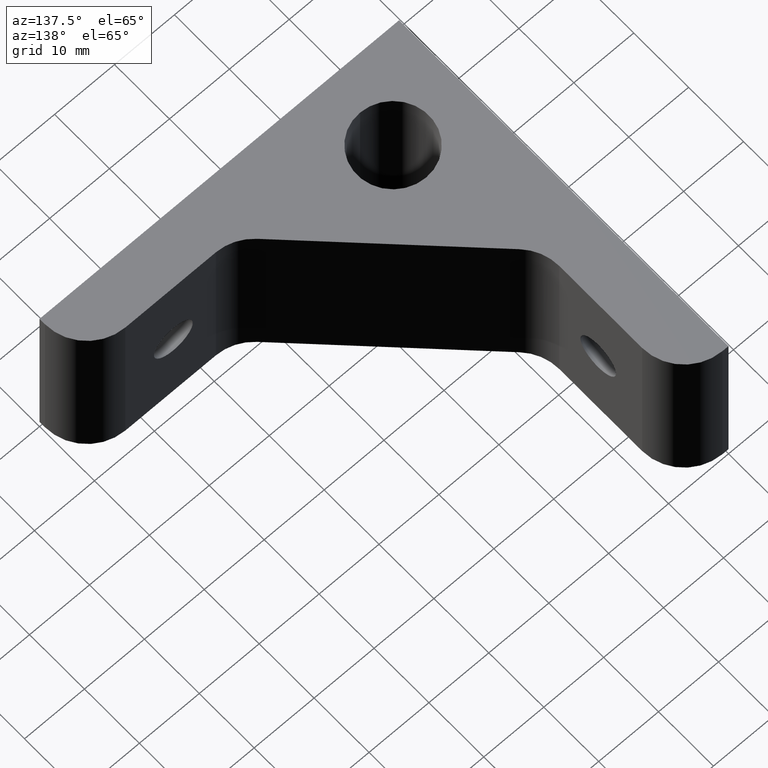
[diagram: clean part render]
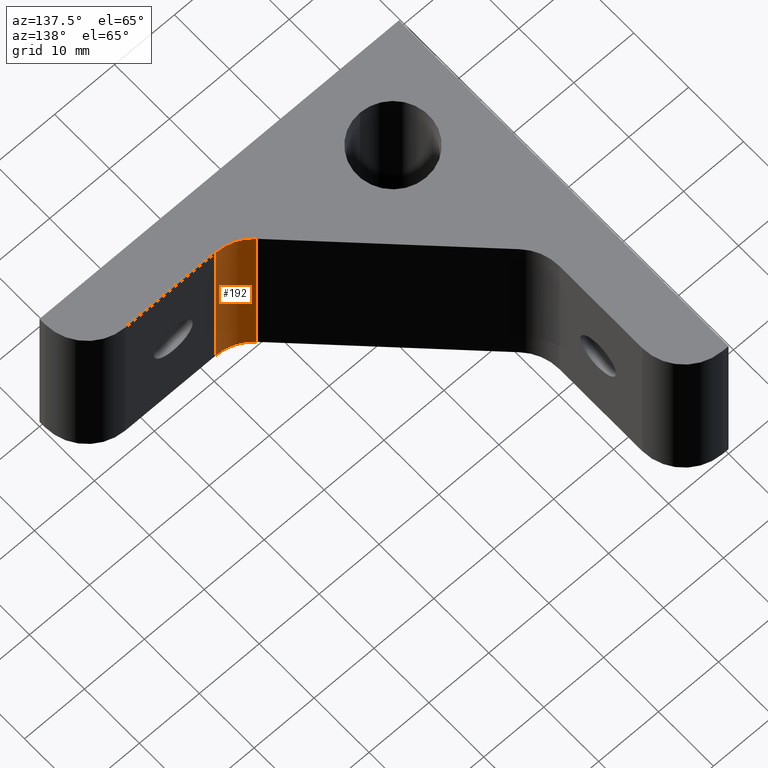
[diagram: same view with one face highlighted and labeled with its STEP entity id]
A machine part, auxiliary view. The second image highlights one B-rep face of the part: STEP entity #192.
In plain terms, the highlighted cylindrical surface (partial cylindrical patch) has radius 7 mm, axis along (0, -0, 1).
Its self-contained STEP definition (entity closure, byte-faithful):
#49 = ORIENTED_EDGE ( 'NONE', *, *, #392, .T. ) ;
#50 = ORIENTED_EDGE ( 'NONE', *, *, #390, .T. ) ;
#51 = ORIENTED_EDGE ( 'NONE', *, *, #408, .T. ) ;
#52 = ORIENTED_EDGE ( 'NONE', *, *, #391, .T. ) ;
#99 = CARTESIAN_POINT ( 'NONE',  ( -22.10050506300000400, 15.00000000000000000, 30.00000000000000000 ) ) ;
#100 = DIRECTION ( 'NONE',  ( 0.0000000000000000000, -0.0000000000000000000, 1.000000000000000000 ) ) ;
#101 = DIRECTION ( 'NONE',  ( 1.000000000000000000, 0.0000000000000000000, 0.0000000000000000000 ) ) ;
#102 = CARTESIAN_POINT ( 'NONE',  ( -22.10050506300000400, 15.00000000000000000, 0.0000000000000000000 ) ) ;
#103 = DIRECTION ( 'NONE',  ( -0.0000000000000000000, 0.0000000000000000000, -1.000000000000000000 ) ) ;
#104 = DIRECTION ( 'NONE',  ( 1.000000000000000000, 0.0000000000000000000, 0.0000000000000000000 ) ) ;
#105 = CARTESIAN_POINT ( 'NONE',  ( -22.10050506300000400, 8.000000000000000000, 15.00000000000000000 ) ) ;
#106 = DIRECTION ( 'NONE',  ( -0.0000000000000000000, -0.0000000000000000000, -1.000000000000000000 ) ) ;
#131 = CARTESIAN_POINT ( 'NONE',  ( -27.05025253124269100, 10.05025253163101500, 14.99999999999999800 ) ) ;
#132 = DIRECTION ( 'NONE',  ( 0.0000000000000000000, 0.0000000000000000000, 1.000000000000000000 ) ) ;
#147 = CARTESIAN_POINT ( 'NONE',  ( -27.05025253137134600, 10.05025253156551000, 0.0000000000000000000 ) ) ;
#156 = CARTESIAN_POINT ( 'NONE',  ( -22.10050506300000400, 8.000000000000000000, 30.00000000000000000 ) ) ;
#162 = CARTESIAN_POINT ( 'NONE',  ( -22.10050506300000400, 8.000000000000000000, 0.0000000000000000000 ) ) ;
#167 = CARTESIAN_POINT ( 'NONE',  ( -27.05025252637134500, 10.05025253656551100, 30.00000000000000000 ) ) ;
#192 = ADVANCED_FACE ( 'NONE', ( #637 ), #638, .F. ) ;
#199 = CIRCLE ( 'NONE', #549, 7.000000000000004400 ) ;
#200 = LINE ( 'NONE', #105, #202 ) ;
#201 = CIRCLE ( 'NONE', #548, 7.000000000000004400 ) ;
#202 = VECTOR ( 'NONE', #106, 1000.000000000000000 ) ;
#219 = LINE ( 'NONE', #131, #220 ) ;
#220 = VECTOR ( 'NONE', #132, 1000.000000000000000 ) ;
#390 = EDGE_CURVE ( 'NONE', #445, #427, #199, .T. ) ;
#391 = EDGE_CURVE ( 'NONE', #433, #415, #201, .T. ) ;
#392 = EDGE_CURVE ( 'NONE', #427, #433, #200, .T. ) ;
#408 = EDGE_CURVE ( 'NONE', #415, #445, #219, .T. ) ;
#415 = VERTEX_POINT ( 'NONE', #147 ) ;
#427 = VERTEX_POINT ( 'NONE', #156 ) ;
#433 = VERTEX_POINT ( 'NONE', #162 ) ;
#445 = VERTEX_POINT ( 'NONE', #167 ) ;
#475 = AXIS2_PLACEMENT_3D ( 'NONE', #525, #524, #523 ) ;
#523 = DIRECTION ( 'NONE',  ( 1.000000000000000000, 0.0000000000000000000, 0.0000000000000000000 ) ) ;
#524 = DIRECTION ( 'NONE',  ( 0.0000000000000000000, -0.0000000000000000000, 1.000000000000000000 ) ) ;
#525 = CARTESIAN_POINT ( 'NONE',  ( -22.10050506300000400, 15.00000000000000000, 0.0000000000000000000 ) ) ;
#548 = AXIS2_PLACEMENT_3D ( 'NONE', #102, #103, #104 ) ;
#549 = AXIS2_PLACEMENT_3D ( 'NONE', #99, #100, #101 ) ;
#560 = EDGE_LOOP ( 'NONE', ( #52, #51, #50, #49 ) ) ;
#637 = FACE_OUTER_BOUND ( 'NONE', #560, .T. ) ;
#638 = CYLINDRICAL_SURFACE ( 'NONE', #475, 7.000000000000004400 ) ;